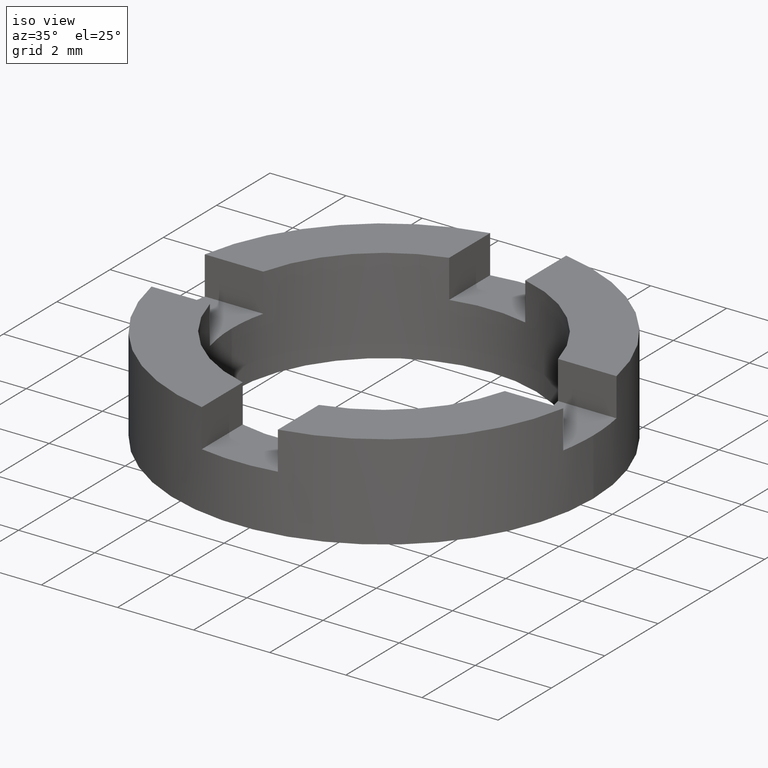
[diagram: clean part render]
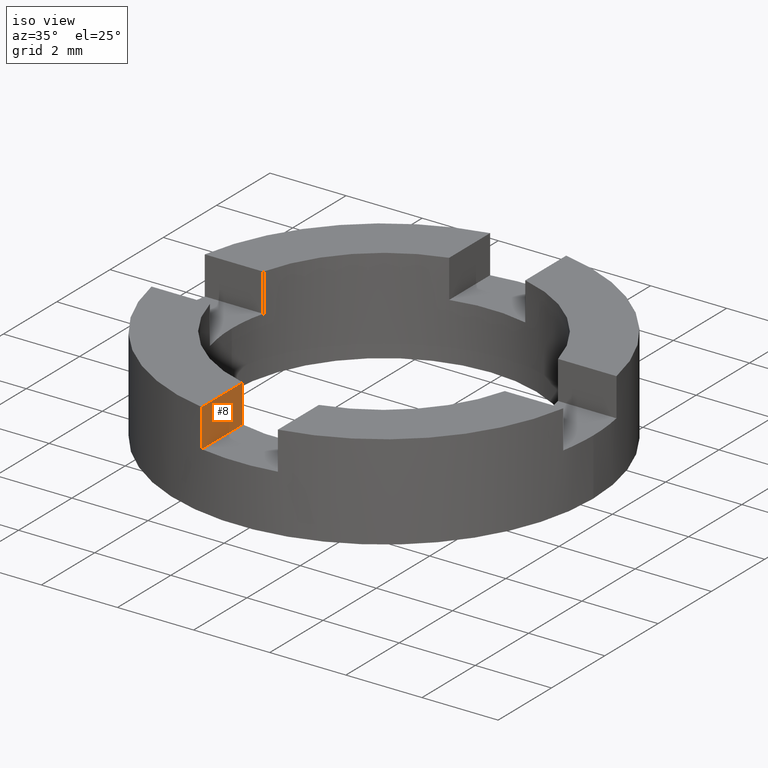
[diagram: same view with one face highlighted and labeled with its STEP entity id]
A machine part, iso view. The second image highlights one B-rep face of the part: STEP entity #8.
In plain terms, the highlighted planar face has unit normal (1, 0, 0).
Its self-contained STEP definition (entity closure, byte-faithful):
#8 = ADVANCED_FACE ( 'NONE', ( #301 ), #720, .T. ) ;
#21 = CARTESIAN_POINT ( 'NONE',  ( -1.000000000000000000, -2.365532012695646217E-16, 1.500000000000000000 ) ) ;
#26 = VERTEX_POINT ( 'NONE', #709 ) ;
#66 = VECTOR ( 'NONE', #126, 1000.000000000000000 ) ;
#68 = CARTESIAN_POINT ( 'NONE',  ( -0.9999999999999991118, -3.872983346207417465, 2.500000000000000000 ) ) ;
#78 = DIRECTION ( 'NONE',  ( -2.365532012695646217E-16, 1.000000000000000000, 0.000000000000000000 ) ) ;
#89 = CARTESIAN_POINT ( 'NONE',  ( -1.000000000000000000, -2.365532012695646217E-16, 1.500000000000000000 ) ) ;
#124 = CARTESIAN_POINT ( 'NONE',  ( -0.9999999999999986677, -5.408326913195983465, 1.500000000000000000 ) ) ;
#126 = DIRECTION ( 'NONE',  ( -0.000000000000000000, -0.000000000000000000, 1.000000000000000000 ) ) ;
#175 = LINE ( 'NONE', #124, #182 ) ;
#181 = CARTESIAN_POINT ( 'NONE',  ( -0.9999999999999991118, -3.872983346207417465, 1.500000000000000000 ) ) ;
#182 = VECTOR ( 'NONE', #348, 1000.000000000000000 ) ;
#212 = EDGE_CURVE ( 'NONE', #526, #407, #306, .T. ) ;
#301 = FACE_OUTER_BOUND ( 'NONE', #522, .T. ) ;
#306 = LINE ( 'NONE', #89, #564 ) ;
#322 = DIRECTION ( 'NONE',  ( 1.000000000000000000, 2.365532012695646217E-16, 0.000000000000000000 ) ) ;
#331 = EDGE_CURVE ( 'NONE', #407, #476, #578, .T. ) ;
#348 = DIRECTION ( 'NONE',  ( -0.000000000000000000, -0.000000000000000000, 1.000000000000000000 ) ) ;
#361 = DIRECTION ( 'NONE',  ( -2.365532012695646217E-16, 1.000000000000000000, 0.000000000000000000 ) ) ;
#367 = AXIS2_PLACEMENT_3D ( 'NONE', #21, #322, #361 ) ;
#371 = ORIENTED_EDGE ( 'NONE', *, *, #331, .T. ) ;
#381 = CARTESIAN_POINT ( 'NONE',  ( -0.9999999999999991118, -3.872983346207417465, 1.500000000000000000 ) ) ;
#407 = VERTEX_POINT ( 'NONE', #381 ) ;
#415 = ORIENTED_EDGE ( 'NONE', *, *, #212, .T. ) ;
#460 = LINE ( 'NONE', #702, #711 ) ;
#476 = VERTEX_POINT ( 'NONE', #68 ) ;
#522 = EDGE_LOOP ( 'NONE', ( #763, #550, #415, #371 ) ) ;
#526 = VERTEX_POINT ( 'NONE', #642 ) ;
#550 = ORIENTED_EDGE ( 'NONE', *, *, #637, .F. ) ;
#564 = VECTOR ( 'NONE', #669, 1000.000000000000000 ) ;
#578 = LINE ( 'NONE', #181, #66 ) ;
#637 = EDGE_CURVE ( 'NONE', #526, #26, #175, .T. ) ;
#642 = CARTESIAN_POINT ( 'NONE',  ( -0.9999999999999986677, -5.408326913195983465, 1.500000000000000000 ) ) ;
#653 = EDGE_CURVE ( 'NONE', #26, #476, #460, .T. ) ;
#669 = DIRECTION ( 'NONE',  ( -2.365532012695646217E-16, 1.000000000000000000, 0.000000000000000000 ) ) ;
#702 = CARTESIAN_POINT ( 'NONE',  ( -1.000000000000000000, -2.365532012695646217E-16, 2.500000000000000000 ) ) ;
#709 = CARTESIAN_POINT ( 'NONE',  ( -0.9999999999999986677, -5.408326913195983465, 2.500000000000000000 ) ) ;
#711 = VECTOR ( 'NONE', #78, 1000.000000000000000 ) ;
#720 = PLANE ( 'NONE',  #367 ) ;
#763 = ORIENTED_EDGE ( 'NONE', *, *, #653, .F. ) ;